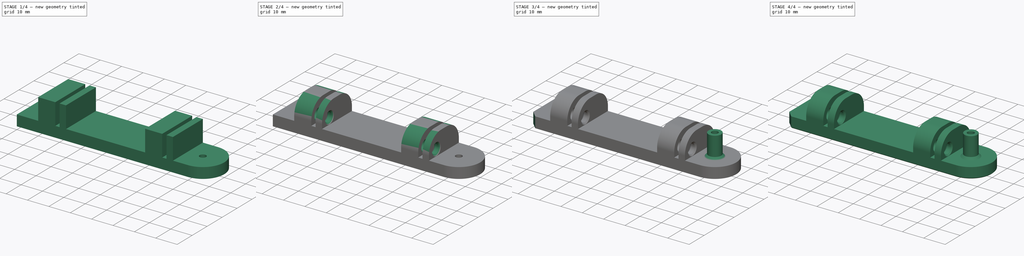
[diagram: build sequence overview — one tinted view per stage of 4, left to right]
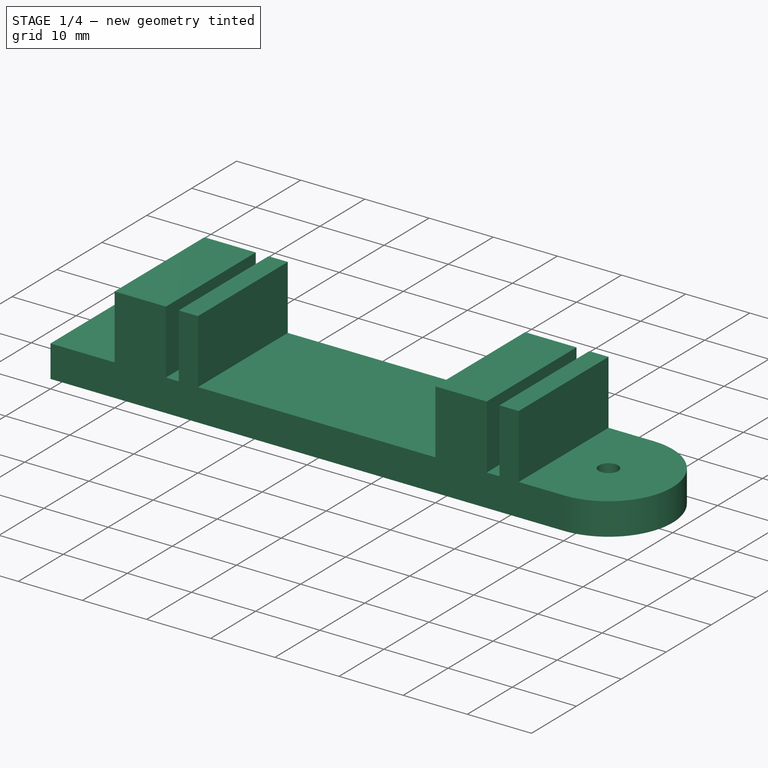
[diagram: stage 1 of 4 — iso view after this stage's code; geometry added in this stage tinted green]
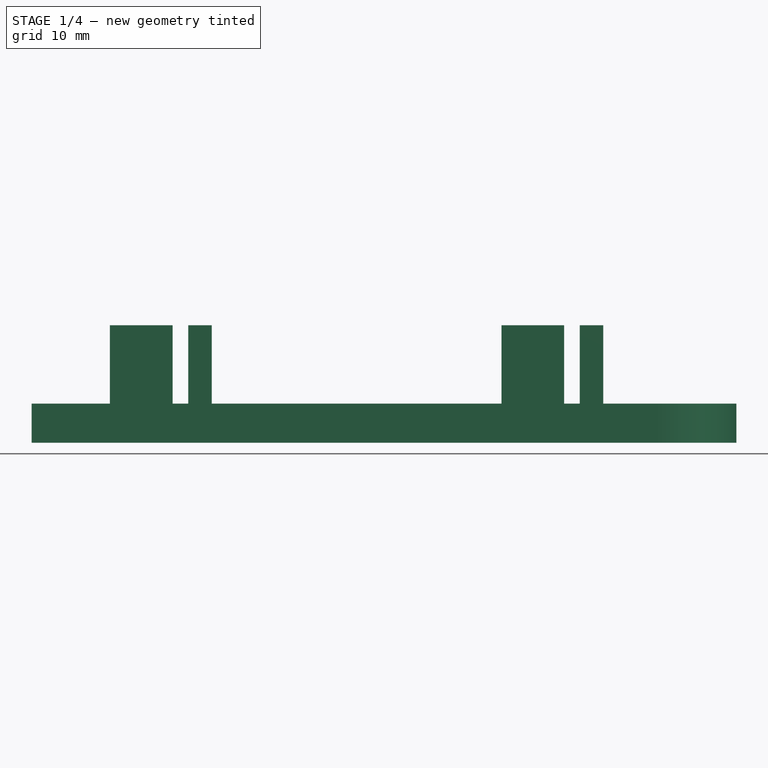
[diagram: stage 1 of 4 — front view after this stage's code; geometry added in this stage tinted green]
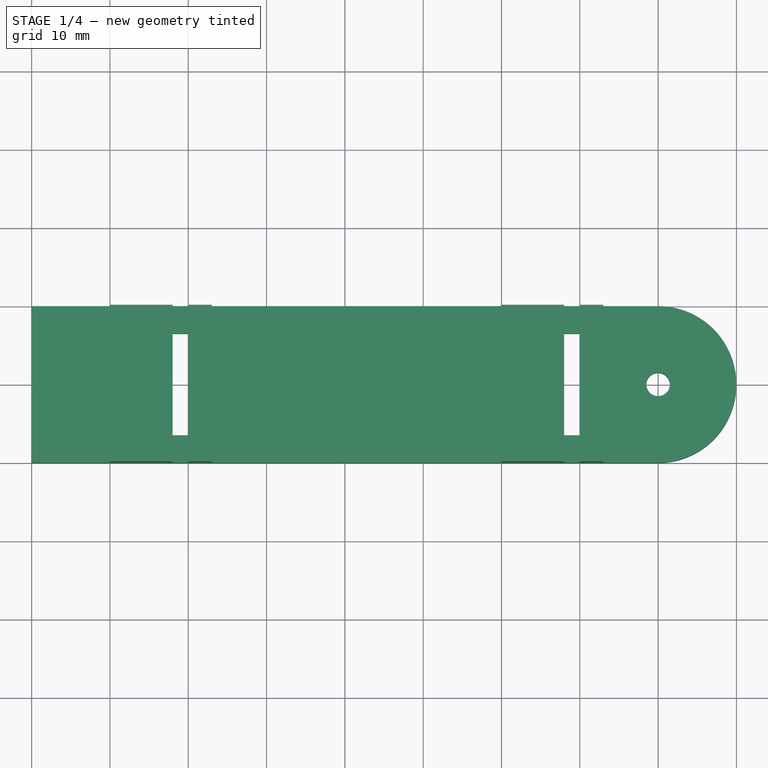
[diagram: stage 1 of 4 — top view after this stage's code; geometry added in this stage tinted green]
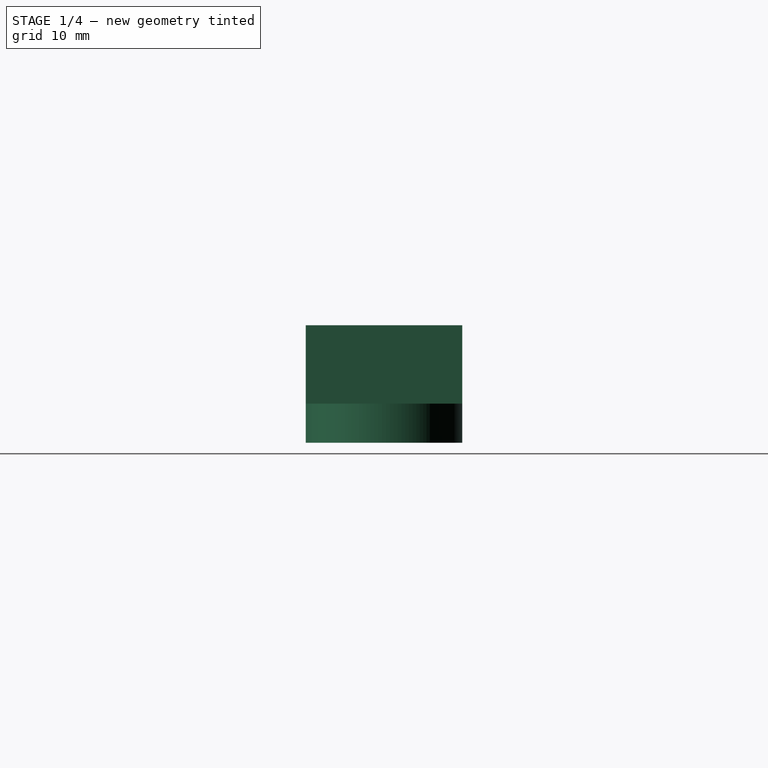
[diagram: stage 1 of 4 — right view after this stage's code; geometry added in this stage tinted green]
FCSTD DOCUMENT  (FreeCAD 2022.709R26244 +5001 (Git))
Label: toolCutter2023
License: Creative Commons Attribution-NoDerivatives
LicenseURL: http://creativecommons.org/licenses/by-nd/4.0/
objects: PartDesign::Chamfer×5, Sketcher::SketchObject×4, PartDesign::Pad×3, PartDesign::Fillet×1, PartDesign::Pocket×1, PartDesign::Body×1
note: 35 computed .brp shape members not serialized (recipe doc carries the construction recipe); baked Part::Feature solids carry a one-line shape summary decoded from their .brp

FEATURE [Sketcher::SketchObject] Sketch
  ArcFitTolerance = 1e-06
  AttachmentSupport = -> [XY_Plane]
  FullyConstrained = true
  MapMode = 5
  Support = -> [XY_Plane]
  TreeRank = 11
  sketch-geometry (13):
    g0: LineSegment StartX=-80 StartY=9.9973 StartZ=0 EndX=3.169e-12 EndY=9.9973 EndZ=0
    g1: LineSegment StartX=-6.9617e-12 StartY=-9.9973 StartZ=0 EndX=-80 EndY=-9.9973 EndZ=0
    g2: LineSegment StartX=-80 StartY=-9.9973 StartZ=0 EndX=-80 EndY=9.9973 EndZ=0
    g3: ArcOfCircle CenterX=7.04e-14 CenterY=-9.14e-14 CenterZ=0 NormalX=0 NormalY=0 NormalZ=1 AngleXU=0 Radius=9.9973 StartAngle=4.71239 EndAngle=7.85398
    g4: Circle CenterX=7.04e-14 CenterY=-9.14e-14 CenterZ=0 NormalX=0 NormalY=0 NormalZ=1 AngleXU=0 Radius=1.5
    g5: LineSegment StartX=-12 StartY=6.5 StartZ=0 EndX=-10 EndY=6.5 EndZ=0
    g6: LineSegment StartX=-10 StartY=6.5 StartZ=0 EndX=-10 EndY=-6.5 EndZ=0
    g7: LineSegment StartX=-10 StartY=-6.5 StartZ=0 EndX=-12 EndY=-6.5 EndZ=0
    g8: LineSegment StartX=-12 StartY=-6.5 StartZ=0 EndX=-12 EndY=6.5 EndZ=0
    g9: LineSegment StartX=-62 StartY=6.5 StartZ=0 EndX=-60 EndY=6.5 EndZ=0
    g10: LineSegment StartX=-60 StartY=6.5 StartZ=0 EndX=-60 EndY=-6.5 EndZ=0
    g11: LineSegment StartX=-60 StartY=-6.5 StartZ=0 EndX=-62 EndY=-6.5 EndZ=0
    g12: LineSegment StartX=-62 StartY=-6.5 StartZ=0 EndX=-62 EndY=6.5 EndZ=0
  constraints (35):
    c: Coincident(g1,g2)
    c: Coincident(g2,g0)
    c: Horizontal(g0)
    c: Horizontal(g1)
    c: Vertical(g2)
    c: Coincident(g3,g-1)
    c: Coincident(g3,g1)
    c: Symmetric(g0,g1,g-1)
    c: Coincident(g4,g3)
    c: Diameter(g4) = 3
    c: Coincident(g5,g6)
    c: Coincident(g6,g7)
    c: Coincident(g7,g8)
    c: Coincident(g8,g5)
    c: Horizontal(g5)
    c: Horizontal(g7)
    c: Vertical(g6)
    c: Coincident(g9,g10)
    c: Coincident(g10,g11)
    c: Coincident(g11,g12)
    c: Coincident(g12,g9)
    c: Horizontal(g9)
    c: Horizontal(g11)
    c: Vertical(g10)
    c: Vertical(g12)
    c: Horizontal(g9,g5)
    c: Horizontal(g10,g7)
    c: Symmetric(g7,g5,g-1)
    c: DistanceX(g5,g5) = 2
    c: Equal(g9,g5)
    c: DistanceX(g9,g3) = 60
    c: Tangent(g3,g0) = 1.5708
    c: DistanceY(g12,g12) = 13
    c: DistanceX(g0,g3) = 80
    c: DistanceX(g5,g3) = 10
FEATURE [PartDesign::Pad] Pad
  AddSubType = 0
  AlongSketchNormal = false
  CheckUpToFaceLimits = true
  ClaimChildren = false
  Direction = (0,0,1)
  Fit = 0
  FitJoin = 0
  InnerFit = 0
  InnerFitJoin = 0
  InnerTaperAngle = 0
  InnerTaperAngleRev = 0
  Length = 5
  Length2 = 100
  Linearize = true
  NewSolid = false
  Profile = -> Sketch
  Refine = true
  Suppress = false
  TreeRank = 12
  Type = 0
  _ProfileBasedVersion = 1
FEATURE [Sketcher::SketchObject] Sketch001
  ArcFitTolerance = 1e-06
  AttachmentSupport = -> [XY_Plane]
  ExternalGeometry = -> [Pad]
  FullyConstrained = true
  MapMode = 5
  Support = -> [XY_Plane]
  TreeRank = 13
  sketch-geometry (16):
    g0: LineSegment StartX=-62 StartY=9.9973 StartZ=0 EndX=-70 EndY=9.9973 EndZ=0
    g1: LineSegment StartX=-70 StartY=9.9973 StartZ=0 EndX=-70 EndY=-9.9973 EndZ=0
    g2: LineSegment StartX=-70 StartY=-9.9973 StartZ=0 EndX=-62 EndY=-9.9973 EndZ=0
    g3: LineSegment StartX=-62 StartY=-9.9973 StartZ=0 EndX=-62 EndY=9.9973 EndZ=0
    g4: LineSegment StartX=-12 StartY=9.9973 StartZ=0 EndX=-20 EndY=9.9973 EndZ=0
    g5: LineSegment StartX=-20 StartY=9.9973 StartZ=0 EndX=-20 EndY=-9.9973 EndZ=0
    g6: LineSegment StartX=-20 StartY=-9.9973 StartZ=0 EndX=-12 EndY=-9.9973 EndZ=0
    g7: LineSegment StartX=-12 StartY=-9.9973 StartZ=0 EndX=-12 EndY=9.9973 EndZ=0
    g8: LineSegment StartX=-10 StartY=9.9973 StartZ=0 EndX=-7 EndY=9.9973 EndZ=0
    g9: LineSegment StartX=-7 StartY=9.9973 StartZ=0 EndX=-7 EndY=-9.9973 EndZ=0
    g10: LineSegment StartX=-7 StartY=-9.9973 StartZ=0 EndX=-10 EndY=-9.9973 EndZ=0
    g11: LineSegment StartX=-10 StartY=-9.9973 StartZ=0 EndX=-10 EndY=9.9973 EndZ=0
    g12: LineSegment StartX=-60 StartY=9.9973 StartZ=0 EndX=-57 EndY=9.9973 EndZ=0
    g13: LineSegment StartX=-57 StartY=9.9973 StartZ=0 EndX=-57 EndY=-9.9973 EndZ=0
    g14: LineSegment StartX=-57 StartY=-9.9973 StartZ=0 EndX=-60 EndY=-9.9973 EndZ=0
    g15: LineSegment StartX=-60 StartY=-9.9973 StartZ=0 EndX=-60 EndY=9.9973 EndZ=0
  constraints (48):
    c: Coincident(g0,g1)
    c: Coincident(g1,g2)
    c: Coincident(g2,g3)
    c: Coincident(g3,g0)
    c: Horizontal(g0)
    c: Horizontal(g2)
    c: Vertical(g1)
    c: Vertical(g3)
    c: PointOnObject(g0,g-3)
    c: PointOnObject(g1,g-4)
    c: Coincident(g4,g5)
    c: Coincident(g5,g6)
    c: Coincident(g6,g7)
    c: Coincident(g7,g4)
    c: Horizontal(g4)
    c: Horizontal(g6)
    c: Vertical(g5)
    c: Vertical(g7)
    c: PointOnObject(g4,g-3)
    c: PointOnObject(g5,g-4)
    c: Coincident(g8,g9)
    c: Coincident(g9,g10)
    c: Coincident(g10,g11)
    c: Coincident(g11,g8)
    c: Horizontal(g8)
    c: Horizontal(g10)
    c: Vertical(g9)
    c: Vertical(g11)
    c: PointOnObject(g8,g-3)
    c: PointOnObject(g9,g-4)
    c: Coincident(g12,g13)
    c: Coincident(g13,g14)
    c: Coincident(g14,g15)
    c: Coincident(g15,g12)
    c: Horizontal(g12)
    c: Horizontal(g14)
    c: Vertical(g13)
    c: Vertical(g15)
    c: PointOnObject(g12,g-3)
    c: PointOnObject(g13,g-4)
    c: DistanceX(g0,g0) = 8
    c: DistanceX(g12,g12) = 3
    c: PointOnObject(g-7,g7)
    c: PointOnObject(g-6,g15)
    c: PointOnObject(g-5,g3)
    c: PointOnObject(g-8,g11)
    c: Equal(g8,g12)
    c: Equal(g4,g0)
FEATURE [PartDesign::Pad] Pad001
  AddSubType = 0
  AlongSketchNormal = false
  BaseFeature = -> Pad
  CheckUpToFaceLimits = true
  ClaimChildren = false
  Direction = (0,0,1)
  Fit = 0
  FitJoin = 0
  InnerFit = 0
  InnerFitJoin = 0
  InnerTaperAngle = 0
  InnerTaperAngleRev = 0
  Length = 15
  Length2 = 100
  Linearize = true
  NewSolid = false
  Profile = -> Sketch001
  Refine = true
  Suppress = false
  TreeRank = 14
  Type = 0
  _ProfileBasedVersion = 1
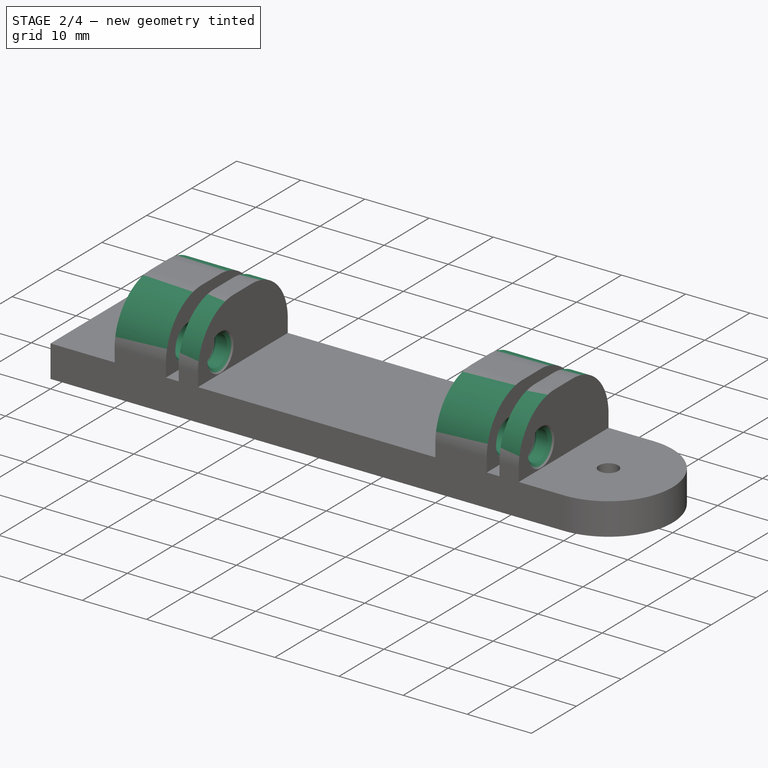
[diagram: stage 2 of 4 — iso view after this stage's code; geometry added in this stage tinted green]
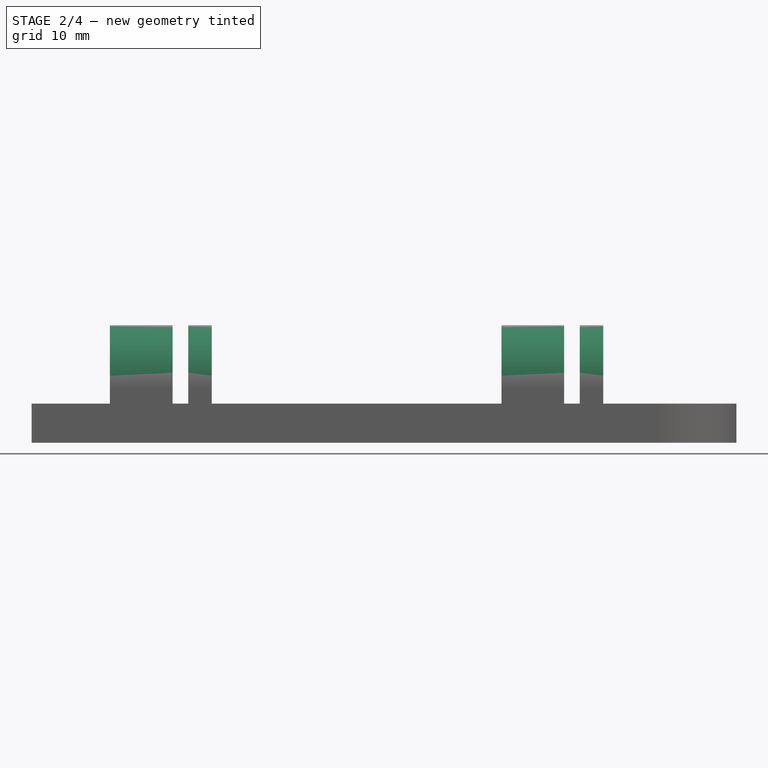
[diagram: stage 2 of 4 — front view after this stage's code; geometry added in this stage tinted green]
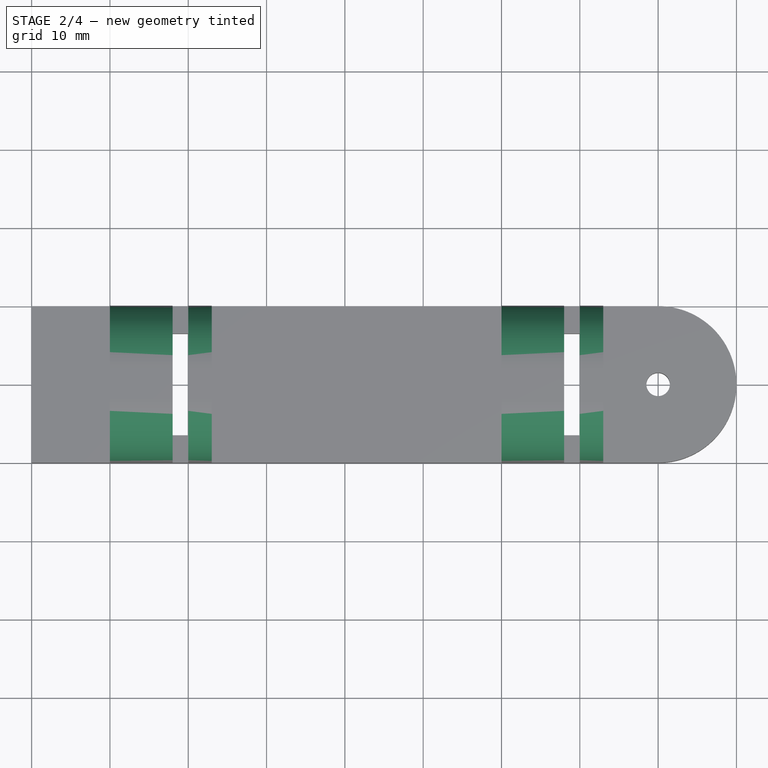
[diagram: stage 2 of 4 — top view after this stage's code; geometry added in this stage tinted green]
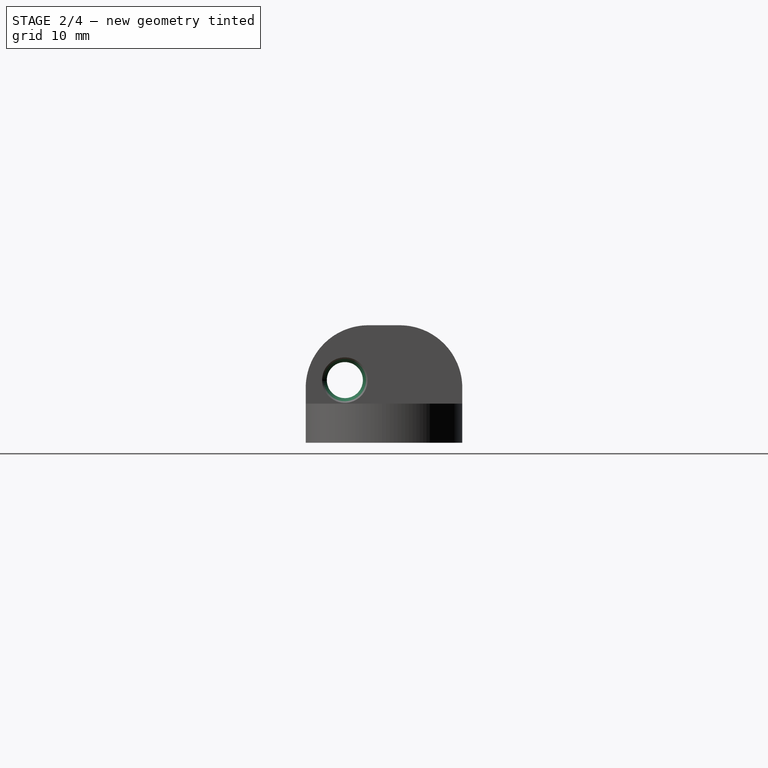
[diagram: stage 2 of 4 — right view after this stage's code; geometry added in this stage tinted green]
FEATURE [PartDesign::Fillet] Fillet
  AddSubType = 0
  Base = -> Pad001 [Edge48,Edge24,Edge20,Edge44,Edge14,Edge15,Edge28,Edge63]
  BaseFeature = -> Pad001
  NewSolid = false
  Radius = 8
  Refine = true
  SupportTransform = false
  Suppress = false
  TreeRank = 15
FEATURE [Sketcher::SketchObject] Sketch002
  ArcFitTolerance = 1e-06
  AttachmentSupport = -> [YZ_Plane]
  FullyConstrained = true
  MapMode = 5
  Placement = pos=(0,0,0) rot=(0.57735,0.57735,0.57735;2.0944rad)
  Support = -> [YZ_Plane]
  TreeRank = 16
  sketch-geometry (1):
    g0: Circle CenterX=-5 CenterY=8 CenterZ=0 NormalX=0 NormalY=0 NormalZ=1 AngleXU=0 Radius=2.3
  constraints (3):
    c: Diameter(g0) = 4.6
    c: DistanceY(g-1,g0) = 8
    c: DistanceX(g0,g-1) = 5
FEATURE [PartDesign::Pocket] Pocket
  AddSubType = 1
  BaseFeature = -> Fillet
  CheckUpToFaceLimits = true
  ClaimChildren = false
  Fit = 0
  FitJoin = 0
  InnerFit = 0
  InnerFitJoin = 0
  InnerTaperAngle = 0
  InnerTaperAngleRev = 0
  Length = 5
  Length2 = 100
  Linearize = true
  NewSolid = false
  Profile = -> Sketch002
  Refine = true
  Suppress = false
  TreeRank = 17
  Type = 1
  _ProfileBasedVersion = 1
  _Version = 1
FEATURE [PartDesign::Chamfer] Chamfer
  AddSubType = 0
  Angle = 45
  Base = -> Pocket [Edge86,Edge7,Edge54,Edge78,Edge97,Edge114,Edge104,Edge90]
  BaseFeature = -> Pocket
  ChamferType = 0
  FlipDirection = false
  NewSolid = false
  Refine = true
  Size = 0.6
  Size2 = 1
  SupportTransform = false
  Suppress = false
  TreeRank = 18
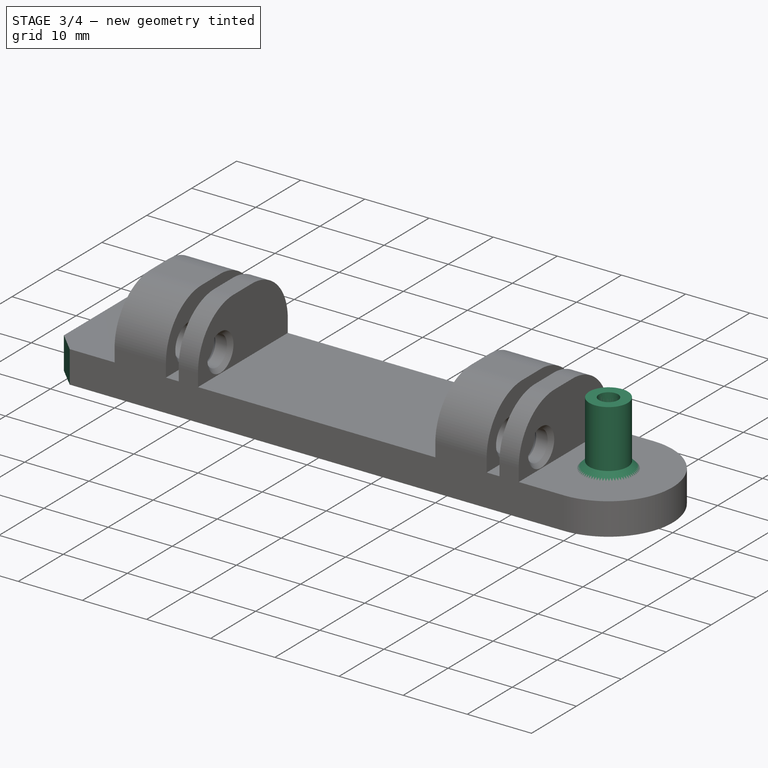
[diagram: stage 3 of 4 — iso view after this stage's code; geometry added in this stage tinted green]
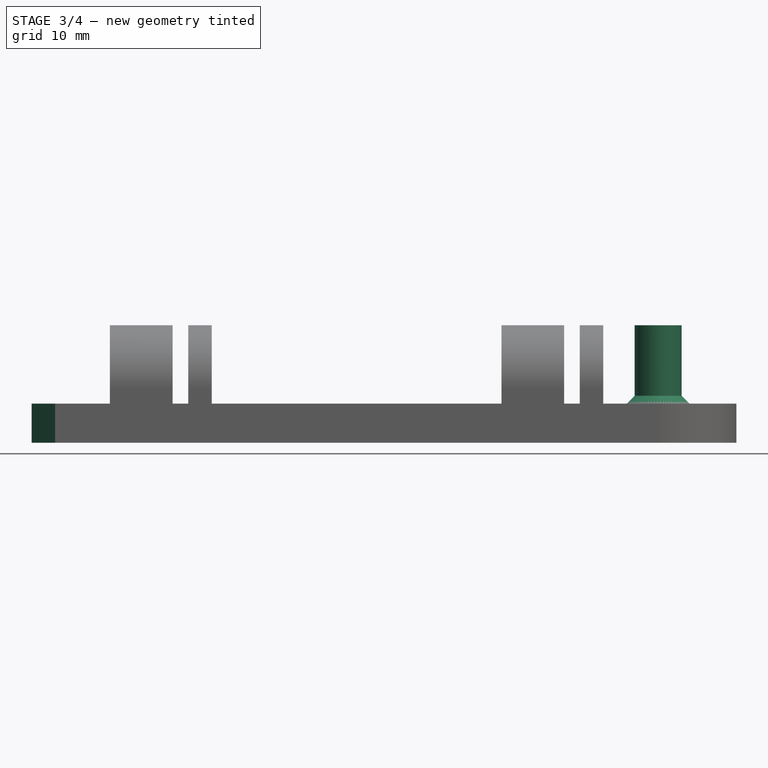
[diagram: stage 3 of 4 — front view after this stage's code; geometry added in this stage tinted green]
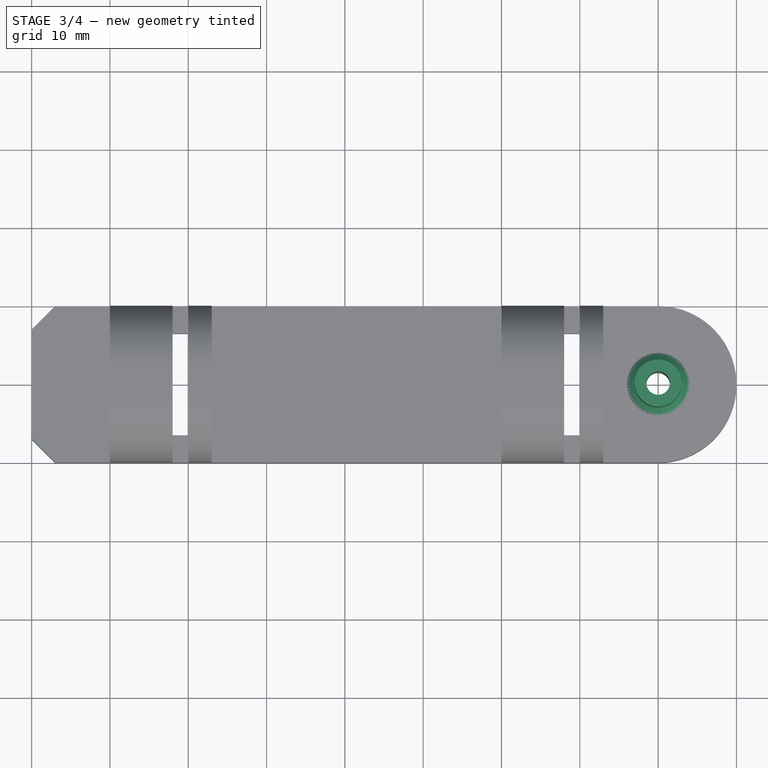
[diagram: stage 3 of 4 — top view after this stage's code; geometry added in this stage tinted green]
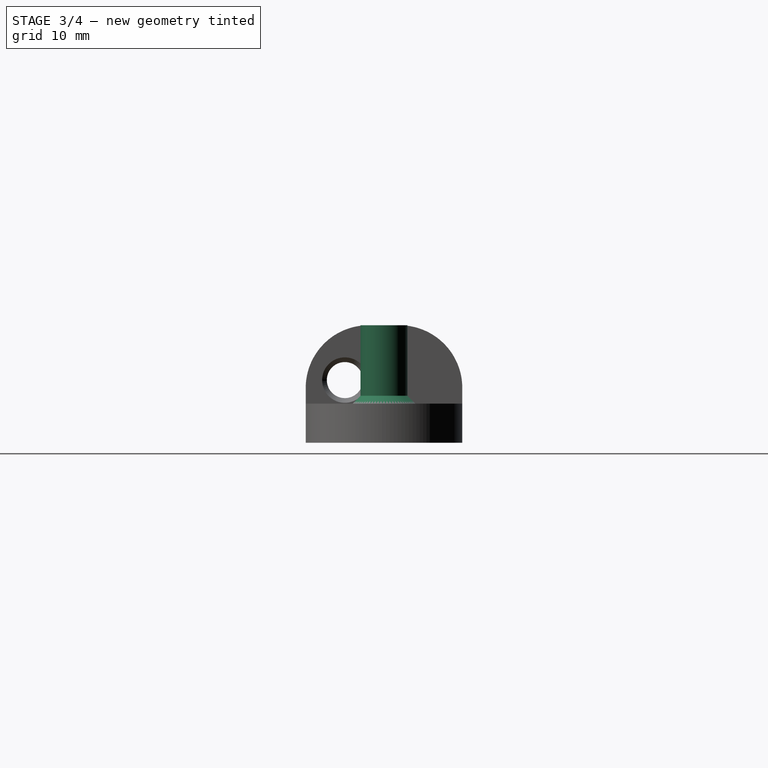
[diagram: stage 3 of 4 — right view after this stage's code; geometry added in this stage tinted green]
FEATURE [PartDesign::Chamfer] Chamfer001
  AddSubType = 0
  Angle = 45
  Base = -> Chamfer [Edge17,Edge40]
  BaseFeature = -> Chamfer
  ChamferType = 0
  FlipDirection = false
  NewSolid = false
  Refine = true
  Size = 3
  Size2 = 1
  SupportTransform = false
  Suppress = false
  TreeRank = 19
FEATURE [Sketcher::SketchObject] Sketch003
  ArcFitTolerance = 1e-06
  AttachmentSupport = -> [XY_Plane]
  ExternalGeometry = -> [Chamfer001]
  FullyConstrained = true
  MapMode = 5
  Support = -> [XY_Plane]
  TreeRank = 20
  sketch-geometry (1):
    g0: Circle CenterX=7.04e-14 CenterY=-9.14e-14 CenterZ=0 NormalX=0 NormalY=0 NormalZ=1 AngleXU=0 Radius=3
  constraints (2):
    c: Coincident(g0,g-3)
    c: Diameter(g0) = 6
FEATURE [PartDesign::Pad] Pad002
  AddSubType = 0
  AlongSketchNormal = false
  BaseFeature = -> Chamfer001
  CheckUpToFaceLimits = true
  ClaimChildren = false
  Direction = (0,0,1)
  Fit = 0
  FitJoin = 0
  InnerFit = 0
  InnerFitJoin = 0
  InnerTaperAngle = 0
  InnerTaperAngleRev = 0
  Length = 15
  Length2 = 100
  Linearize = true
  NewSolid = false
  Profile = -> Sketch003
  Refine = true
  Suppress = false
  TreeRank = 21
  Type = 0
  _ProfileBasedVersion = 1
FEATURE [PartDesign::Chamfer] Chamfer002
  AddSubType = 0
  Angle = 45
  Base = -> Pad002 [Edge33]
  BaseFeature = -> Pad002
  ChamferType = 0
  FlipDirection = false
  NewSolid = false
  Refine = true
  Size = 1
  Size2 = 1
  SupportTransform = false
  Suppress = false
  TreeRank = 22
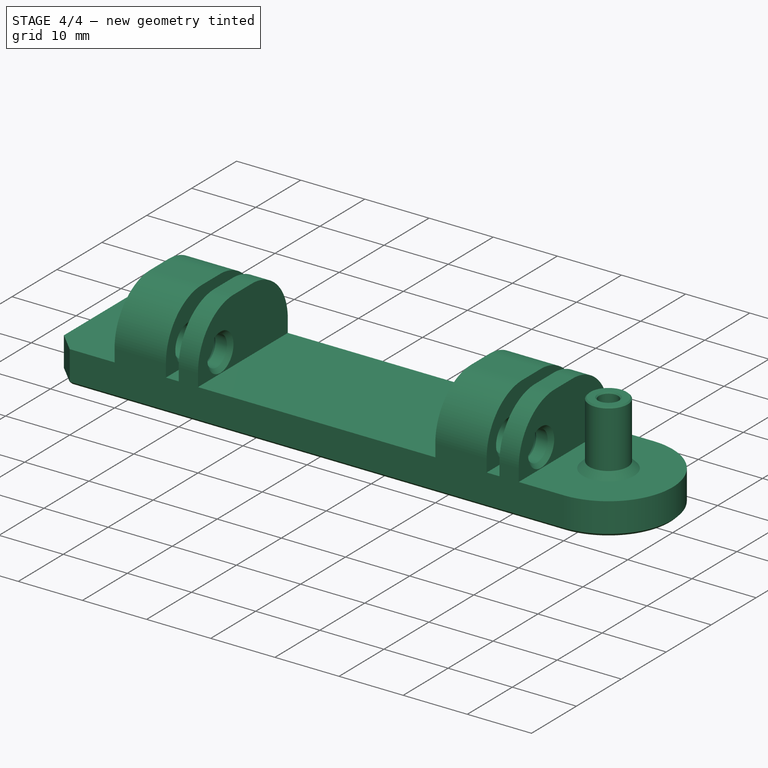
[diagram: stage 4 of 4 — iso view after this stage's code; geometry added in this stage tinted green]
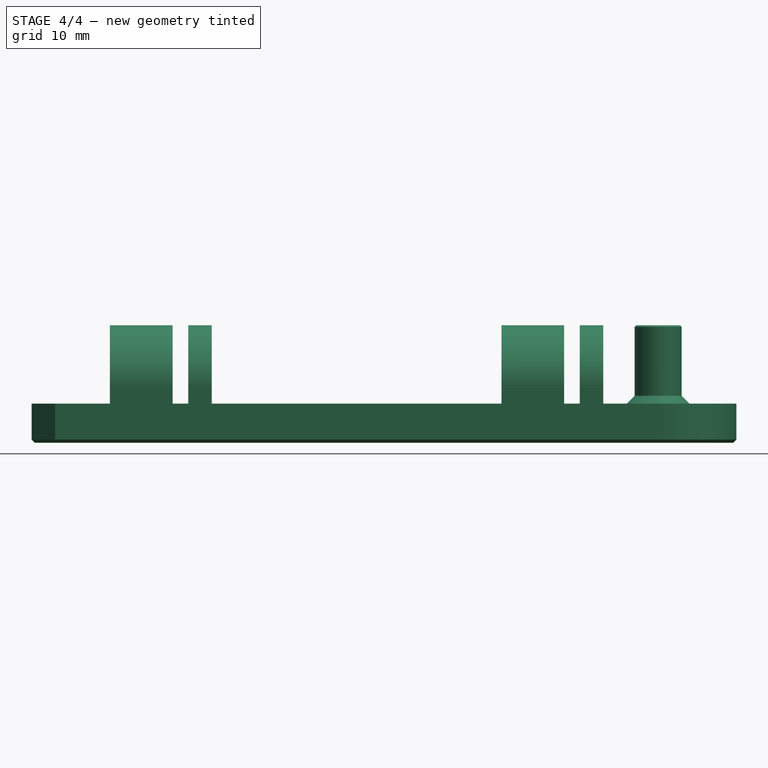
[diagram: stage 4 of 4 — front view after this stage's code; geometry added in this stage tinted green]
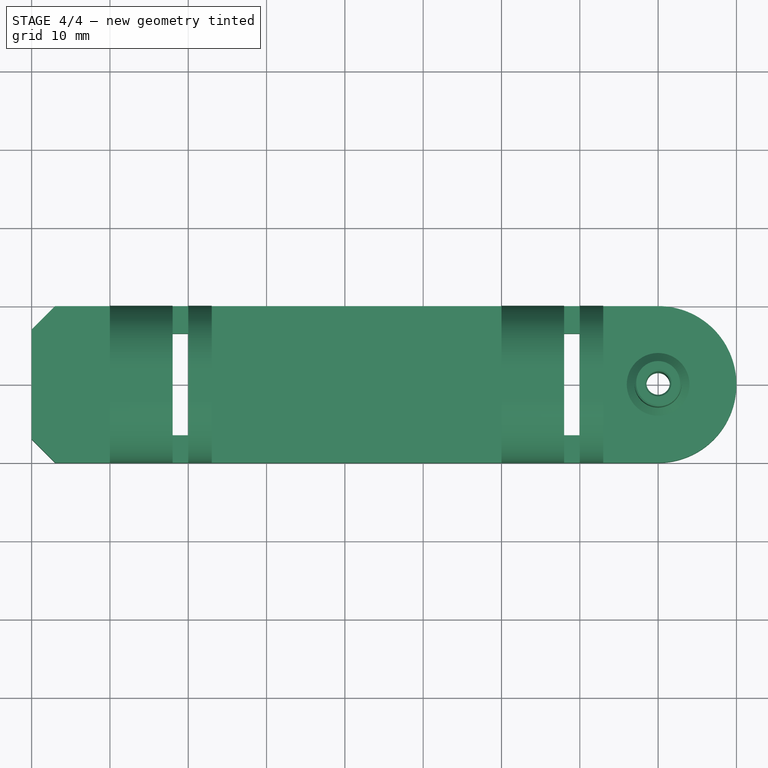
[diagram: stage 4 of 4 — top view after this stage's code; geometry added in this stage tinted green]
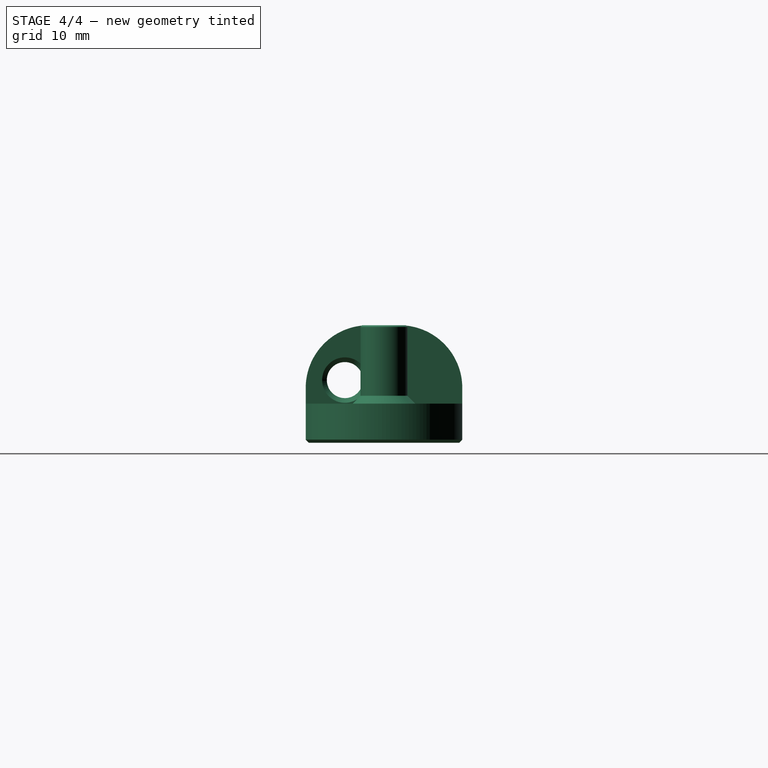
[diagram: stage 4 of 4 — right view after this stage's code; geometry added in this stage tinted green]
FEATURE [PartDesign::Chamfer] Chamfer003
  AddSubType = 0
  Angle = 45
  Base = -> Chamfer002 [Edge52,Edge131]
  BaseFeature = -> Chamfer002
  ChamferType = 0
  FlipDirection = false
  NewSolid = false
  Refine = true
  Size = 0.2
  Size2 = 1
  SupportTransform = false
  Suppress = false
  TreeRank = 23
FEATURE [PartDesign::Chamfer] Chamfer004
  AddSubType = 0
  Angle = 45
  Base = -> Chamfer003 [Face12]
  BaseFeature = -> Chamfer003
  ChamferType = 0
  FlipDirection = false
  NewSolid = false
  Refine = true
  Size = 0.4
  Size2 = 1
  SupportTransform = false
  Suppress = false
  TreeRank = 24
FEATURE [PartDesign::Body] Body
  AutoGroupSolids = false
  ClaimAllChildren = false
  ExportMode = 0
  Group = -> [Sketch,Pad,Sketch001,Pad001,Fillet,Sketch002,Pocket,Chamfer,Chamfer001,Sketch003,Pad002,Chamfer002,Chamfer003,Chamfer004]
  Origin = -> Origin
  SingleSolid = true
  Tip = -> Chamfer004
  TreeRank = 10
  _ExportChildren = -> [Pad,Pad001,Fillet,Pocket,Chamfer,Chamfer001,Pad002,Chamfer002,Chamfer003,Chamfer004]
  _GroupVersion = 1
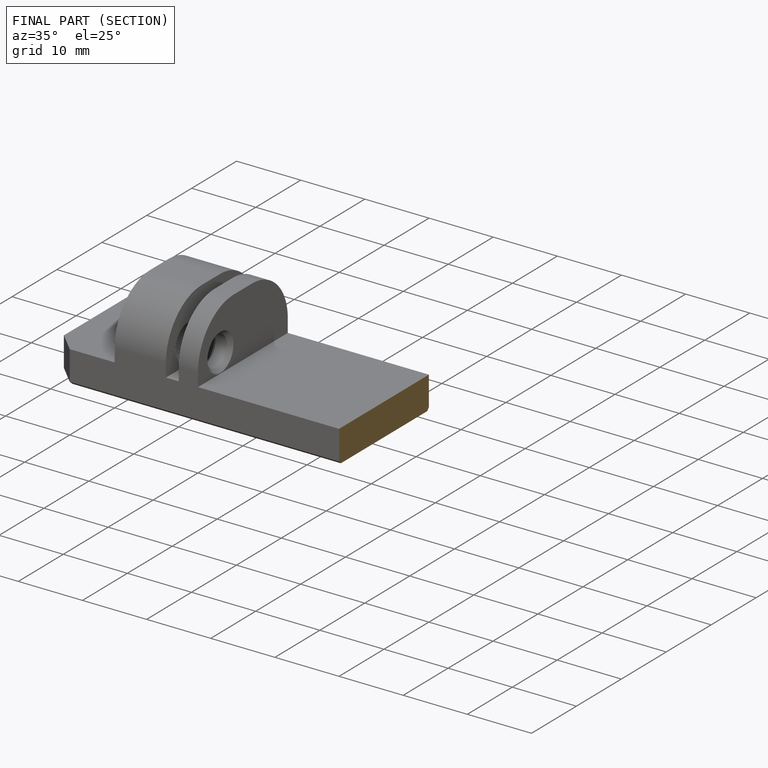
[diagram: finished part — half-section view (interior)]
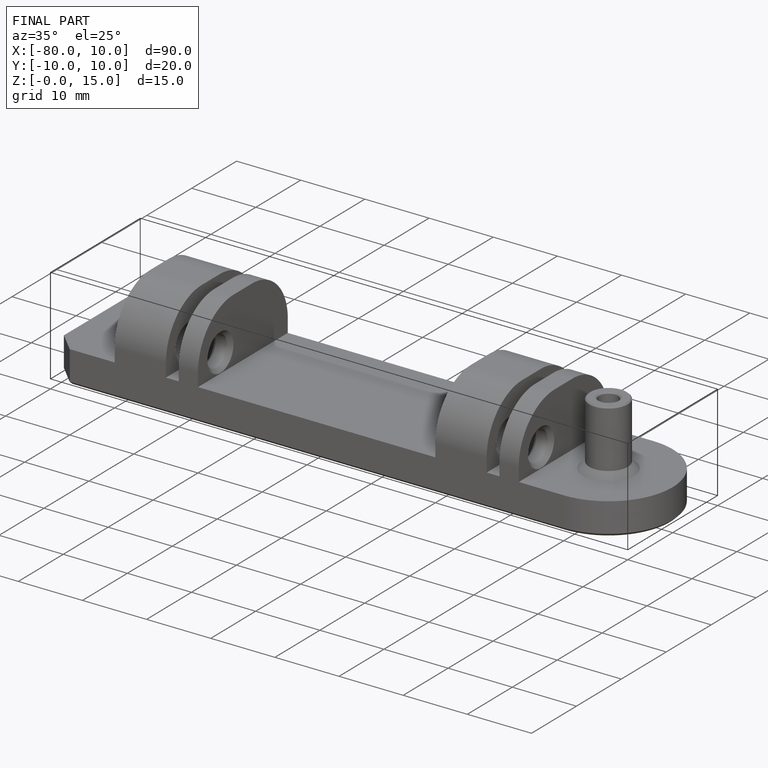
[diagram: finished part — iso view with bounding-box wireframe]
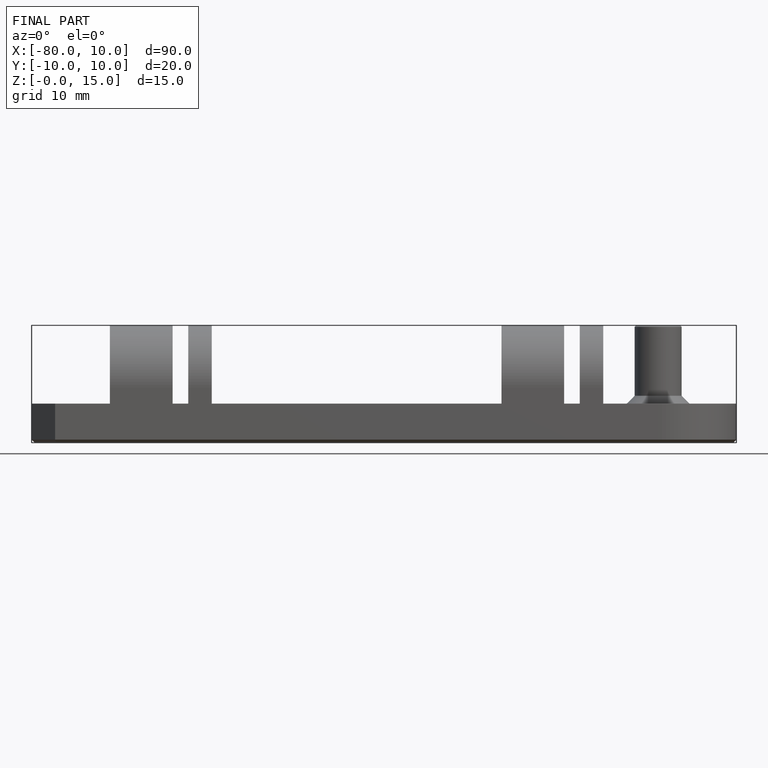
[diagram: finished part — front view with bounding-box wireframe]
